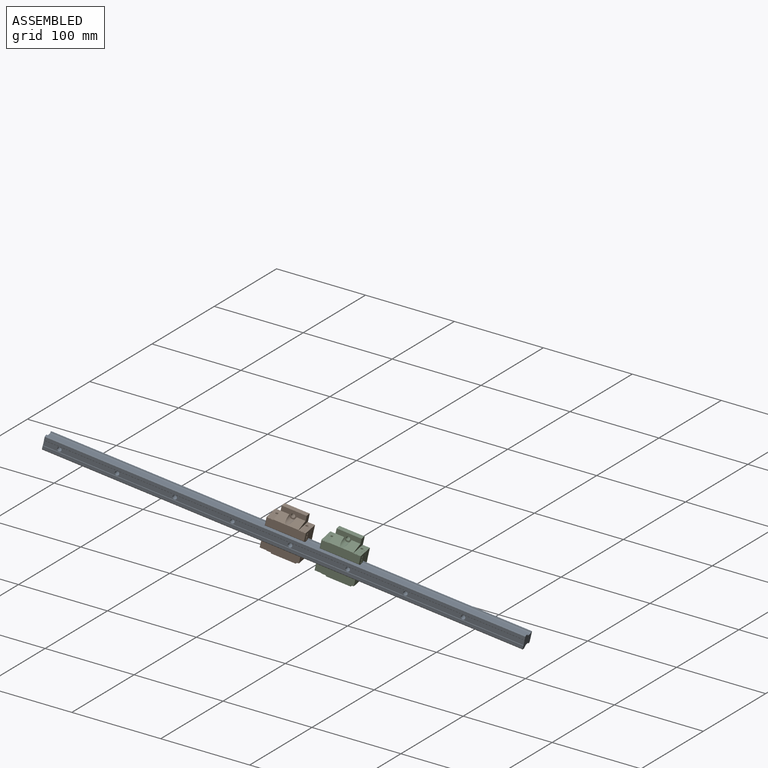
[diagram: assembled view]
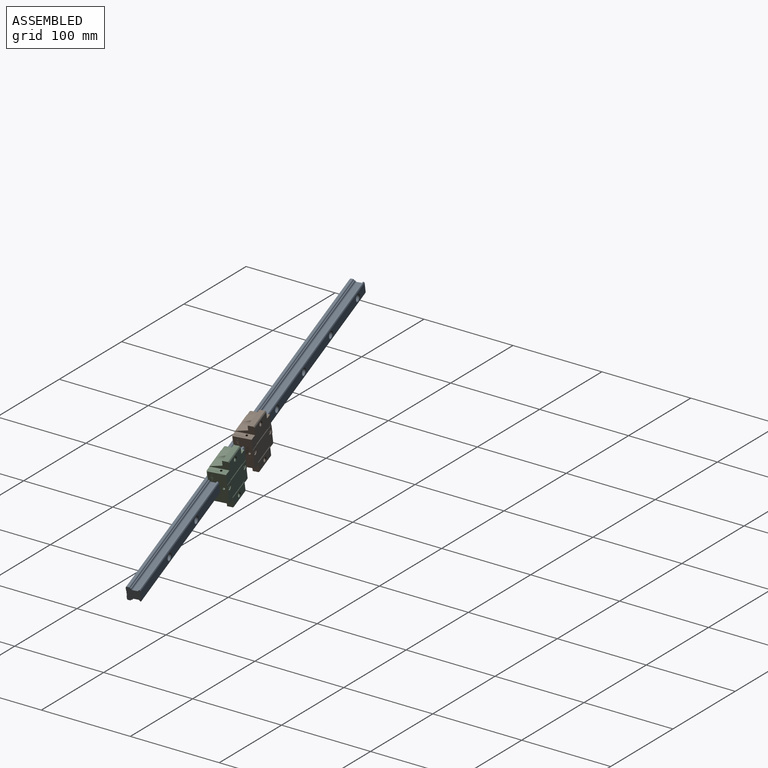
[diagram: assembled view, second angle]
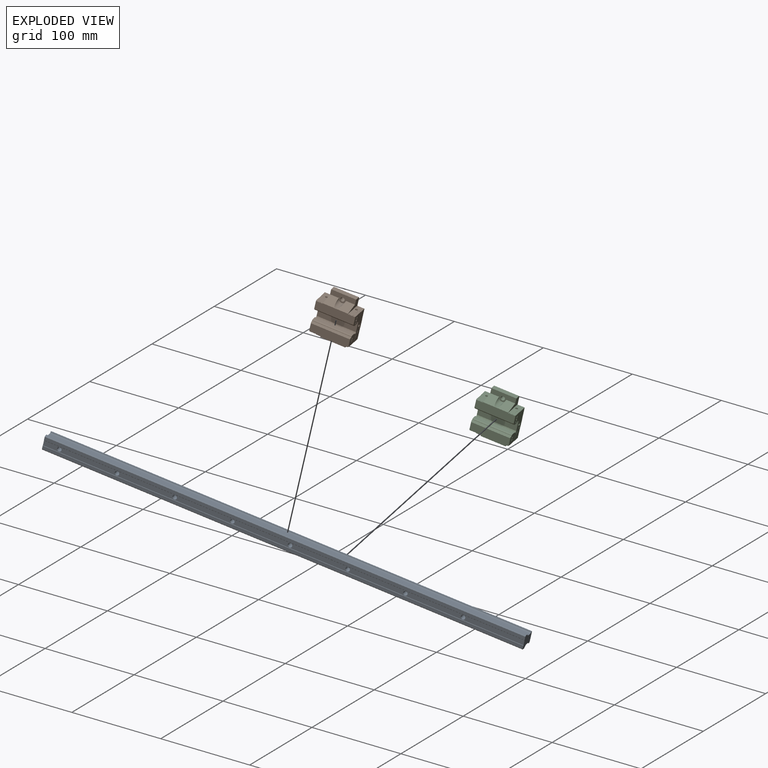
[diagram: exploded view]
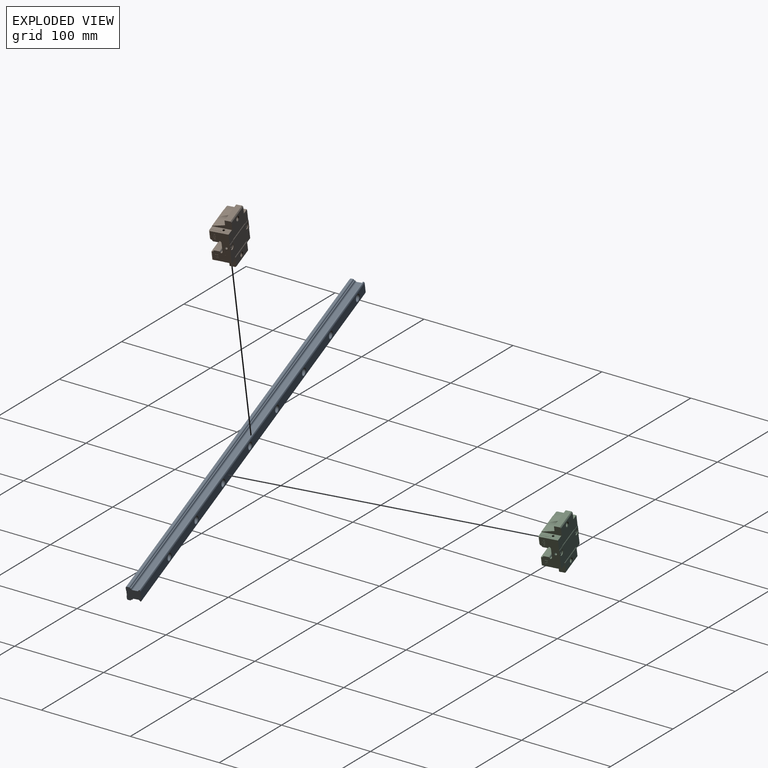
[diagram: exploded view, second angle]
ASSEMBLY  parts=3 mates=4
PART A: 68 faces, bbox 15x15x500 mm
  f0: cylinder r=0.5mm len=500mm, axis (0,0,-1), area 261.8mm2, adj f34,f35,f58,f67
  f1: cylinder r=0.3mm len=500mm, axis (0,0,-1), area 209mm2, adj f35,f36,f58,f67
  f2: cylinder r=0.3mm len=500mm, axis (0,0,-1), area 209mm2, adj f38,f39,f58,f67
  f3: cylinder r=0.3mm len=500mm, axis (0,0,-1), area 130.9mm2, adj f41,f42,f58,f67
  f4: cylinder r=0.3mm len=500mm, axis (0,0,-1), area 130.9mm2, adj f50,f51,f58,f67
  f5: cylinder r=0.3mm len=500mm, axis (0,0,-1), area 209mm2, adj f33,f53,f58,f67
  f6: cylinder r=0.3mm len=500mm, axis (0,0,-1), area 209mm2, adj f32,f55,f58,f67
  f7: cylinder r=0.5mm len=500mm, axis (0,0,-1), area 261.8mm2, adj f55,f56,f58,f67
  f8: cylinder r=3.75mm len=7.5mm, axis (0,1,0), area 119mm2, adj f9,f66
  f9: cone r=4mm half-angle=45deg, axis (0,1,0), area 8.6mm2, adj f8,f57
  f10: cylinder r=2.25mm len=9.4mm, axis (0,1,0), area 132.9mm2, adj f46,f66
  f11: cylinder r=3.75mm len=7.5mm, axis (0,1,0), area 119mm2, adj f12,f65
  f12: cone r=4mm half-angle=45deg, axis (0,1,0), area 8.6mm2, adj f11,f57
  f13: cylinder r=2.25mm len=9.4mm, axis (0,1,0), area 132.9mm2, adj f46,f65
  f14: cylinder r=3.75mm len=7.5mm, axis (0,1,0), area 119mm2, adj f15,f64
  f15: cone r=4mm half-angle=45deg, axis (0,1,0), area 8.6mm2, adj f14,f57
  f16: cylinder r=2.25mm len=9.4mm, axis (0,1,0), area 132.9mm2, adj f46,f64
  f17: cylinder r=3.75mm len=7.5mm, axis (0,1,0), area 119mm2, adj f18,f63
  f18: cone r=4mm half-angle=45deg, axis (0,1,0), area 8.6mm2, adj f17,f57
  f19: cylinder r=2.25mm len=9.4mm, axis (0,1,0), area 132.9mm2, adj f46,f63
  f20: cylinder r=3.75mm len=7.5mm, axis (0,1,0), area 119mm2, adj f21,f62
  f21: cone r=4mm half-angle=45deg, axis (0,1,0), area 8.6mm2, adj f20,f57
  f22: cylinder r=2.25mm len=9.4mm, axis (0,1,0), area 132.9mm2, adj f46,f62
  f23: cylinder r=3.75mm len=7.5mm, axis (0,1,0), area 119mm2, adj f24,f61
  f24: cone r=4mm half-angle=45deg, axis (0,1,0), area 8.6mm2, adj f23,f57
  f25: cylinder r=2.25mm len=9.4mm, axis (0,1,0), area 132.9mm2, adj f46,f61
  f26: cylinder r=3.75mm len=7.5mm, axis (0,1,0), area 119mm2, adj f27,f60
  f27: cone r=4mm half-angle=45deg, axis (0,1,0), area 8.6mm2, adj f26,f57
  f28: cylinder r=2.25mm len=9.4mm, axis (0,1,0), area 132.9mm2, adj f46,f60
  f29: cylinder r=3.75mm len=7.5mm, axis (0,1,0), area 119mm2, adj f30,f59
  f30: cone r=4mm half-angle=45deg, axis (0,1,0), area 8.6mm2, adj f29,f57
  f31: cylinder r=2.25mm len=9.4mm, axis (0,1,0), area 132.9mm2, adj f46,f59
  f32: cylinder r=1.65mm len=500mm, axis (0,0,-1), area 1221mm2, adj f6,f54,f58,f67
  f33: cylinder r=1.65mm len=500mm, axis (0,0,-1), area 1221mm2, adj f5,f54,f58,f67
  f34: plane 500x0.95mm, normal (-0.5,0.87,0), area 548.5mm2, adj f0,f57,f58,f67
  f35: plane 500x0.54mm, normal (-1,0,0), area 271.6mm2, adj f0,f1,f58,f67
  f36: cylinder r=1.65mm len=500mm, axis (0,0,-1), area 1221mm2, adj f1,f37,f58,f67
  f37: plane 500x4.13mm, normal (-1,0,0), area 2063.3mm2, adj f36,f38,f58,f67
  f38: cylinder r=1.65mm len=500mm, axis (0,0,-1), area 1221mm2, adj f2,f37,f58,f67
  f39: plane 500x0.58mm, normal (-1,0,0), area 292.4mm2, adj f2,f40,f58,f67
  f40: cylinder r=0.3mm len=500mm, axis (0,0,-1), area 130.9mm2, adj f39,f41,f58,f67
  f41: plane 500x0.79mm, normal (-0.64,0.77,0), area 512.8mm2, adj f3,f40,f58,f67
  f42: plane 500x2.72mm, normal (-1,0,0), area 1360.5mm2, adj f3,f43,f58,f67
  f43: plane 500x0.8mm, normal (-0.71,-0.71,0), area 565.7mm2, adj f42,f44,f58,f67
  f44: plane 500x3.7mm, normal (0,-1,0), area 1850mm2, adj f43,f45,f58,f67
  f45: plane 500x0.3mm, normal (0.71,-0.71,0), area 212.1mm2, adj f44,f46,f58,f67
  f46: plane 500x5.4mm, normal (0,-1,0), area 2572.8mm2, adj f10,f13,f16,f19,f22,f25,f28,f31
  f47: plane 500x0.3mm, normal (-0.71,-0.71,0), area 212.1mm2, adj f46,f48,f58,f67
  f48: plane 500x3.7mm, normal (0,-1,0), area 1850mm2, adj f47,f49,f58,f67
  f49: plane 500x0.8mm, normal (0.71,-0.71,0), area 565.7mm2, adj f48,f50,f58,f67
  f50: plane 500x2.72mm, normal (1,0,0), area 1360.5mm2, adj f4,f49,f58,f67
  f51: plane 500x0.79mm, normal (0.64,0.77,0), area 512.8mm2, adj f4,f52,f58,f67
  f52: cylinder r=0.3mm len=500mm, axis (0,0,-1), area 130.9mm2, adj f51,f53,f58,f67
  f53: plane 500x0.58mm, normal (1,0,0), area 292.4mm2, adj f5,f52,f58,f67
  f54: plane 500x4.13mm, normal (1,0,0), area 2063.3mm2, adj f32,f33,f58,f67
  f55: plane 500x0.54mm, normal (1,0,0), area 271.6mm2, adj f6,f7,f58,f67
  f56: plane 500x0.95mm, normal (0.5,0.87,0), area 548.5mm2, adj f7,f57,f58,f67
  f57: plane 500x10.6mm, normal (0,1,0), area 4897.9mm2, adj f9,f12,f15,f18,f21,f24,f27,f30
  f58: plane 15x15mm, normal (0,0,1), area 177.5mm2, adj f0,f1,f2,f3,f4,f5,f6,f7
  f59: plane 7.5x7.5mm, normal (0,1,0), area 28.3mm2, adj f29,f31
  f60: plane 7.5x7.5mm, normal (0,1,0), area 28.3mm2, adj f26,f28
  f61: plane 7.5x7.5mm, normal (0,1,0), area 28.3mm2, adj f23,f25
  f62: plane 7.5x7.5mm, normal (0,1,0), area 28.3mm2, adj f20,f22
  f63: plane 7.5x7.5mm, normal (0,1,0), area 28.3mm2, adj f17,f19
  f64: plane 7.5x7.5mm, normal (0,1,0), area 28.3mm2, adj f14,f16
  f65: plane 7.5x7.5mm, normal (0,1,0), area 28.3mm2, adj f11,f13
  f66: plane 7.5x7.5mm, normal (0,1,0), area 28.3mm2, adj f8,f10
  f67: plane 15x15mm, normal (0,0,-1), area 177.5mm2, adj f0,f1,f2,f3,f4,f5,f6,f7
PART B: 258 faces, bbox 52x20.7x41.2 mm
  f0: cylinder r=0.4mm len=26mm, axis (0,0,-1), area 21.8mm2, adj f24,f43,f44,f49
  f1: cylinder r=1.25mm len=2.5mm, axis (0,1,0), area 2.4mm2, adj f252,f255
  f2: cylinder r=1.25mm len=2.5mm, axis (0,1,0), area 2.4mm2, adj f253,f254
  f3: cylinder r=3mm len=6mm, axis (0,1,0), area 18.8mm2, adj f60,f253
  f4: cylinder r=3mm len=6mm, axis (0,1,0), area 18.8mm2, adj f53,f252
  f5: cylinder r=1.35mm len=5.5mm, axis (1,0,0), area 46.7mm2, adj f6,f41
  f6: cone r=1.35mm half-angle=59deg, axis (1,0,0), area 6.7mm2, adj f5
  f7: cylinder r=1.35mm len=5.5mm, axis (1,0,0), area 46.7mm2, adj f8,f57
  f8: cone r=1.35mm half-angle=59deg, axis (1,0,0), area 6.7mm2, adj f7
  f9: cylinder r=3.75mm len=13.7mm, axis (0,-1,0), area 105.5mm2, adj f34,f35,f46,f47
  f10: cylinder r=1.35mm len=5.5mm, axis (-1,0,0), area 46.7mm2, adj f11,f40
  f11: cone r=1.35mm half-angle=59deg, axis (-1,0,0), area 6.7mm2, adj f10
  f12: cylinder r=1.35mm len=5.5mm, axis (-1,0,0), area 46.7mm2, adj f13,f56
  f13: cone r=1.35mm half-angle=59deg, axis (-1,0,0), area 6.7mm2, adj f12
  f14: cylinder r=1.35mm len=41mm, axis (0,0,1), area 82.4mm2, adj f38,f39,f238,f239
  f15: cylinder r=1.35mm len=41mm, axis (0,0,1), area 82.4mm2, adj f38,f39,f237,f238
  f16: cylinder r=2.15mm len=6.4mm, axis (0,-1,0), area 86.5mm2, adj f17,f46
  f17: cone r=2.15mm half-angle=45deg, axis (0,1,0), area 13.1mm2, adj f16,f33
  f18: cylinder r=2.15mm len=6.4mm, axis (0,-1,0), area 86.5mm2, adj f19,f37
  f19: cone r=2.15mm half-angle=45deg, axis (0,1,0), area 13.1mm2, adj f18,f50
  f20: cone r=1.35mm half-angle=59deg, axis (0,0,-1), area 6.7mm2, adj f21
  f21: cylinder r=1.35mm len=5.4mm, axis (0,0,-1), area 45.8mm2, adj f20,f38
  f22: cone r=1.35mm half-angle=59deg, axis (0,0,1), area 6.7mm2, adj f23
  f23: cylinder r=1.35mm len=5.4mm, axis (0,0,1), area 45.8mm2, adj f22,f39
  f24: plane 26x2.65mm, normal (1,0,0), area 69mm2, adj f0,f43,f44,f257
  f25: plane 38.4x9.05mm, normal (0,-1,0), area 342.4mm2, adj f26,f27,f36,f43,f44,f48,f69,f80
  f26: cylinder r=1.3mm len=9.6mm, axis (1,0,0), area 18.1mm2, adj f25,f39,f69,f245,f247,f248
  f27: cylinder r=1.3mm len=9.6mm, axis (1,0,0), area 18.1mm2, adj f25,f38,f80,f245,f247,f248
  f28: plane 10.9x0.45mm, normal (0,0,1), area 1.9mm2, adj f30,f58,f59,f60,f61,f62,f219,f224
  f29: plane 10.9x0.45mm, normal (0,0,-1), area 1.9mm2, adj f30,f51,f52,f53,f54,f55,f219,f224
  f30: plane 26x10mm, normal (0,1,0), area 260mm2, adj f28,f29,f219,f224
  f31: plane 20.7x11.45mm, normal (0,0,1), area 96.8mm2, adj f33,f35,f45,f46,f47,f56,f62,f72
  f32: plane 20.7x11.45mm, normal (0,0,-1), area 96.8mm2, adj f33,f34,f35,f40,f45,f46,f51,f84
  f33: plane 26x10mm, normal (0,1,0), area 236.2mm2, adj f17,f31,f32,f218,f256
  f34: plane 13.7x12.14mm, normal (-0.97,-0.26,0), area 141.6mm2, adj f9,f32,f35,f46
  f35: plane 38.4x9.05mm, normal (0,-1,0), area 341.8mm2, adj f9,f31,f32,f34,f47,f74,f85,f226
  f36: plane 13.7x12.14mm, normal (0.97,-0.26,0), area 141.6mm2, adj f25,f37,f43,f251
  f37: plane 26x9.25mm, normal (0,-1,0), area 150.2mm2, adj f18,f36,f43,f44,f48,f49,f251
  f38: plane 32.85x18.2mm, normal (0,0,-1), area 302mm2, adj f14,f15,f21,f27,f75,f76,f77,f78
  f39: plane 32.85x18.2mm, normal (0,0,1), area 302mm2, adj f14,f15,f23,f26,f64,f65,f66,f67
  f40: plane 19.55x7.6mm, normal (-1,0,0), area 113.5mm2, adj f10,f32,f42,f51,f79,f83,f84
  f41: plane 19.45x7.6mm, normal (1,0,0), area 113mm2, adj f5,f42,f44,f55,f75,f81,f82
  f42: plane 33x8.55mm, normal (0,0,-1), area 177.5mm2, adj f40,f41,f51,f52,f53,f54,f55,f75
  f43: plane 20.7x11.45mm, normal (0,0,1), area 96.7mm2, adj f0,f24,f25,f36,f37,f49,f50,f57
  f44: plane 20.7x11.45mm, normal (0,0,-1), area 96.7mm2, adj f0,f24,f25,f37,f41,f48,f49,f50
  f45: plane 26x6mm, normal (-1,0,0), area 156mm2, adj f31,f32,f46,f256
  f46: plane 26x9.25mm, normal (0,-1,0), area 150.2mm2, adj f9,f16,f31,f32,f34,f45,f47
  f47: plane 13.7x12.14mm, normal (-0.97,-0.26,0), area 141.6mm2, adj f9,f31,f35,f46
  f48: plane 13.7x12.14mm, normal (0.97,-0.26,0), area 141.6mm2, adj f25,f37,f44,f251
  f49: plane 26x2.65mm, normal (1,0,0), area 69mm2, adj f0,f37,f43,f44
  f50: plane 26x10mm, normal (0,1,0), area 236.2mm2, adj f19,f43,f44,f225,f257
  f51: plane 11.7x7.6mm, normal (0,1,0), area 88.9mm2, adj f29,f32,f40,f42,f52,f216
  f52: plane 7.6x0.3mm, normal (-0.71,0.71,0), area 3.2mm2, adj f29,f42,f51,f53
  f53: plane 9x7.6mm, normal (0,1,0), area 40.1mm2, adj f4,f29,f42,f52,f54
  f54: plane 7.6x0.3mm, normal (0.71,0.71,0), area 3.2mm2, adj f29,f42,f53,f55
  f55: plane 11.7x7.6mm, normal (0,1,0), area 88.9mm2, adj f29,f41,f42,f44,f54,f221
  f56: plane 19.55x7.6mm, normal (-1,0,0), area 113.5mm2, adj f12,f31,f62,f63,f64,f72,f73
  f57: plane 19.45x7.6mm, normal (1,0,0), area 113mm2, adj f7,f43,f58,f63,f68,f70,f71
  f58: plane 11.7x7.6mm, normal (0,1,0), area 88.9mm2, adj f28,f43,f57,f59,f63,f222
  f59: plane 7.6x0.3mm, normal (0.71,0.71,0), area 3.2mm2, adj f28,f58,f60,f63
  f60: plane 9x7.6mm, normal (0,1,0), area 40.1mm2, adj f3,f28,f59,f61,f63
  f61: plane 7.6x0.3mm, normal (-0.71,0.71,0), area 3.2mm2, adj f28,f60,f62,f63
  f62: plane 11.7x7.6mm, normal (0,1,0), area 88.9mm2, adj f28,f31,f56,f61,f63,f217
  f63: plane 33x8.55mm, normal (0,0,1), area 177.5mm2, adj f56,f57,f58,f59,f60,f61,f62,f64
  f64: plane 5x2.6mm, normal (0,-1,0), area 0.7mm2, adj f39,f56,f63,f65,f73,f74
  f65: plane 10x7.5mm, normal (0.6,-0.8,0), area 1.2mm2, adj f39,f63,f64,f66
  f66: plane 3x0.1mm, normal (0,-1,0), area 0.3mm2, adj f39,f63,f65,f67
  f67: plane 10x7.5mm, normal (-0.6,-0.8,0), area 1.2mm2, adj f39,f63,f66,f68
  f68: plane 5x2.6mm, normal (0,-1,0), area 0.6mm2, adj f39,f57,f63,f67,f69,f70
  f69: plane 12x7.5mm, normal (1,0,0), area 33.6mm2, adj f25,f26,f39,f43,f68,f70,f71
  f70: plane 11.2x0.05mm, normal (0,0,1), area 0.6mm2, adj f57,f68,f69,f71
  f71: plane 5x0.05mm, normal (0,-1,0), area 0.3mm2, adj f43,f57,f69,f70
  f72: plane 5x0.1mm, normal (0,-1,0), area 0.5mm2, adj f31,f56,f73,f74
  f73: plane 11.3x0.1mm, normal (0,0,1), area 1.1mm2, adj f56,f64,f72,f74
  f74: plane 12x7.5mm, normal (-1,0,0), area 33.1mm2, adj f31,f35,f39,f64,f72,f73,f226
  f75: plane 5x2.6mm, normal (0,-1,0), area 0.6mm2, adj f38,f41,f42,f76,f80,f82
  f76: plane 10x7.5mm, normal (-0.6,-0.8,0), area 1.2mm2, adj f38,f42,f75,f77
  f77: plane 3x0.1mm, normal (0,-1,0), area 0.3mm2, adj f38,f42,f76,f78
  f78: plane 10x7.5mm, normal (0.6,-0.8,0), area 1.2mm2, adj f38,f42,f77,f79
  f79: plane 5x2.6mm, normal (0,-1,0), area 0.7mm2, adj f38,f40,f42,f78,f83,f85
  f80: plane 12x7.5mm, normal (1,0,0), area 33.6mm2, adj f25,f27,f38,f44,f75,f81,f82
  f81: plane 5x0.05mm, normal (0,-1,0), area 0.3mm2, adj f41,f44,f80,f82
  f82: plane 11.2x0.05mm, normal (0,0,-1), area 0.6mm2, adj f41,f75,f80,f81
  f83: plane 11.3x0.1mm, normal (0,0,-1), area 1.1mm2, adj f40,f79,f84,f85
  f84: plane 5x0.1mm, normal (0,-1,0), area 0.5mm2, adj f32,f40,f83,f85
  f85: plane 12x7.5mm, normal (-1,0,0), area 33.1mm2, adj f32,f35,f38,f79,f83,f84,f227
  f86: bspline ~0.41x0.32mm, area 0.2mm2, adj f39,f87,f97,f98
  f87: plane 0.87x0.3mm, normal (-0.09,-1,0), area 0.3mm2, adj f39,f86,f88,f98
  f88: bspline ~1.21x0.83mm, area 0.5mm2, adj f39,f87,f89,f98
  f89: bspline ~1.35x1.13mm, area 0.6mm2, adj f39,f88,f90,f98
  f90: bspline ~0.56x0.3mm, area 0.2mm2, adj f39,f89,f91,f98
  f91: bspline ~0.54x0.49mm, area 0.2mm2, adj f39,f90,f92,f98
  f92: bspline ~0.64x0.3mm, area 0.2mm2, adj f39,f91,f93,f98
  f93: bspline ~1.23x0.75mm, area 0.5mm2, adj f39,f92,f94,f98
  f94: plane 0.87x0.3mm, normal (-0.14,0.99,0), area 0.3mm2, adj f39,f93,f95,f98
  f95: bspline ~0.36x0.3mm, area 0.1mm2, adj f39,f94,f96,f98
  f96: bspline ~0.58x0.42mm, area 0.2mm2, adj f39,f95,f97,f98
  f97: bspline ~0.53x0.42mm, area 0.2mm2, adj f39,f86,f96,f98
  f98: plane 2.56x2.28mm, normal (0,0,1), area 3.6mm2, adj f86,f87,f88,f89,f90,f91,f92,f93
  f99: plane 0.83x0.3mm, normal (0,1,0), area 0.2mm2, adj f39,f100,f108,f109
  f100: plane 3.03x0.3mm, normal (1,0,0), area 0.9mm2, adj f39,f99,f101,f109
  f101: plane 0.77x0.3mm, normal (0,-1,0), area 0.2mm2, adj f39,f100,f102,f109
  f102: plane 0.32x0.3mm, normal (-1,0,0), area 0.1mm2, adj f39,f101,f103,f109
  f103: bspline ~0.3x0.3mm, area 0.1mm2, adj f39,f102,f104,f109
  f104: bspline ~0.41x0.3mm, area 0.1mm2, adj f39,f103,f105,f109
  f105: bspline ~1.16x0.93mm, area 0.5mm2, adj f39,f104,f106,f109
  f106: bspline ~1.12x0.93mm, area 0.5mm2, adj f39,f105,f107,f109
  f107: bspline ~0.64x0.3mm, area 0.2mm2, adj f39,f106,f108,f109
  f108: plane 1.03x0.3mm, normal (-1,0,0), area 0.3mm2, adj f39,f99,f107,f109
  f109: plane 3.07x2.4mm, normal (0,0,1), area 4.9mm2, adj f99,f100,f101,f102,f103,f104,f105,f106
  f110: bspline ~0.56x0.37mm, area 0.2mm2, adj f109,f111,f113,f114
  f111: bspline ~0.54x0.35mm, area 0.2mm2, adj f109,f110,f112,f114
  f112: bspline ~0.56x0.34mm, area 0.2mm2, adj f109,f111,f113,f114
  f113: bspline ~0.54x0.38mm, area 0.2mm2, adj f109,f110,f112,f114
  f114: plane 1.1x0.71mm, normal (0,0,1), area 0.6mm2, adj f110,f111,f112,f113
  f115: bspline ~0.41x0.32mm, area 0.2mm2, adj f39,f116,f126,f127
  f116: plane 0.87x0.3mm, normal (-0.09,-1,0), area 0.3mm2, adj f39,f115,f117,f127
  f117: bspline ~1.21x0.83mm, area 0.5mm2, adj f39,f116,f118,f127
  f118: bspline ~1.35x1.13mm, area 0.6mm2, adj f39,f117,f119,f127
  f119: bspline ~0.56x0.3mm, area 0.2mm2, adj f39,f118,f120,f127
  f120: bspline ~0.54x0.49mm, area 0.2mm2, adj f39,f119,f121,f127
  f121: bspline ~0.64x0.3mm, area 0.2mm2, adj f39,f120,f122,f127
  f122: bspline ~1.23x0.75mm, area 0.5mm2, adj f39,f121,f123,f127
  f123: plane 0.87x0.3mm, normal (-0.14,0.99,0), area 0.3mm2, adj f39,f122,f124,f127
  f124: bspline ~0.36x0.3mm, area 0.1mm2, adj f39,f123,f125,f127
  f125: bspline ~0.58x0.42mm, area 0.2mm2, adj f39,f124,f126,f127
  f126: bspline ~0.53x0.42mm, area 0.2mm2, adj f39,f115,f125,f127
  f127: plane 2.56x2.28mm, normal (0,0,1), area 3.6mm2, adj f115,f116,f117,f118,f119,f120,f121,f122
  f128: plane 0.53x0.34mm, normal (0.84,-0.54,0), area 0.2mm2, adj f39,f129,f133,f134
  f129: plane 0.88x0.3mm, normal (0,-1,0), area 0.3mm2, adj f39,f128,f130,f134
  f130: plane 3.18x0.3mm, normal (-1,0,0), area 1mm2, adj f39,f129,f131,f134
  f131: plane 0.57x0.3mm, normal (0,1,0), area 0.2mm2, adj f39,f130,f132,f134
  f132: plane 2.65x0.3mm, normal (1,0,0), area 0.8mm2, adj f39,f131,f133,f134
  f133: plane 0.65x0.3mm, normal (0,1,0), area 0.2mm2, adj f39,f128,f132,f134
  f134: plane 3.18x1.22mm, normal (0,0,1), area 2.1mm2, adj f128,f129,f130,f131,f132,f133
  f135: plane 1.76x0.37mm, normal (0.98,-0.21,0), area 0.5mm2, adj f39,f136,f149,f150
  f136: plane 1.45x0.3mm, normal (0,-1,0), area 0.4mm2, adj f39,f135,f137,f150
  f137: plane 0.53x0.3mm, normal (-1,0,0), area 0.2mm2, adj f39,f136,f138,f150
  f138: plane 0.99x0.3mm, normal (0,1,0), area 0.3mm2, adj f39,f137,f139,f150
  f139: plane 0.6x0.3mm, normal (-0.98,0.2,0), area 0.2mm2, adj f39,f138,f140,f150
  f140: bspline ~0.3x0.2mm, area 0.1mm2, adj f39,f139,f141,f150
  f141: bspline ~1.05x0.96mm, area 0.5mm2, adj f39,f140,f142,f150
  f142: bspline ~1.1x1.06mm, area 0.5mm2, adj f39,f141,f143,f150
  f143: bspline ~1.06x0.86mm, area 0.4mm2, adj f39,f142,f144,f150
  f144: plane 0.65x0.3mm, normal (0,-1,0), area 0.2mm2, adj f39,f143,f145,f150
  f145: bspline ~0.44x0.3mm, area 0.2mm2, adj f39,f144,f146,f150
  f146: bspline ~0.52x0.46mm, area 0.2mm2, adj f39,f145,f147,f150
  f147: bspline ~0.5x0.44mm, area 0.2mm2, adj f39,f146,f148,f150
  f148: bspline ~0.37x0.3mm, area 0.1mm2, adj f39,f147,f149,f150
  f149: plane 0.48x0.3mm, normal (0.22,0.97,0), area 0.1mm2, adj f39,f135,f148,f150
  f150: plane 3.26x2.12mm, normal (0,0,1), area 3.7mm2, adj f135,f136,f137,f138,f139,f140,f141,f142
  f151: bspline ~0.41x0.32mm, area 0.2mm2, adj f38,f152,f162,f163
  f152: plane 0.87x0.3mm, normal (0.09,-1,0), area 0.3mm2, adj f38,f151,f153,f163
  f153: bspline ~1.21x0.83mm, area 0.5mm2, adj f38,f152,f154,f163
  f154: bspline ~1.35x1.13mm, area 0.6mm2, adj f38,f153,f155,f163
  f155: bspline ~0.56x0.3mm, area 0.2mm2, adj f38,f154,f156,f163
  f156: bspline ~0.54x0.49mm, area 0.2mm2, adj f38,f155,f157,f163
  f157: bspline ~0.64x0.3mm, area 0.2mm2, adj f38,f156,f158,f163
  f158: bspline ~1.23x0.75mm, area 0.5mm2, adj f38,f157,f159,f163
  f159: plane 0.87x0.3mm, normal (0.14,0.99,0), area 0.3mm2, adj f38,f158,f160,f163
  f160: bspline ~0.36x0.3mm, area 0.1mm2, adj f38,f159,f161,f163
  f161: bspline ~0.58x0.42mm, area 0.2mm2, adj f38,f160,f162,f163
  f162: bspline ~0.53x0.42mm, area 0.2mm2, adj f38,f151,f161,f163
  f163: plane 2.56x2.28mm, normal (0,0,-1), area 3.6mm2, adj f151,f152,f153,f154,f155,f156,f157,f158
  f164: plane 0.83x0.3mm, normal (0,1,0), area 0.2mm2, adj f38,f165,f173,f174
  f165: plane 3.03x0.3mm, normal (-1,0,0), area 0.9mm2, adj f38,f164,f166,f174
  f166: plane 0.77x0.3mm, normal (0,-1,0), area 0.2mm2, adj f38,f165,f167,f174
  f167: plane 0.32x0.3mm, normal (1,0,0), area 0.1mm2, adj f38,f166,f168,f174
  f168: bspline ~0.3x0.3mm, area 0.1mm2, adj f38,f167,f169,f174
  f169: bspline ~0.41x0.3mm, area 0.1mm2, adj f38,f168,f170,f174
  f170: bspline ~1.16x0.93mm, area 0.5mm2, adj f38,f169,f171,f174
  f171: bspline ~1.12x0.93mm, area 0.5mm2, adj f38,f170,f172,f174
  f172: bspline ~0.64x0.3mm, area 0.2mm2, adj f38,f171,f173,f174
  f173: plane 1.03x0.3mm, normal (1,0,0), area 0.3mm2, adj f38,f164,f172,f174
  f174: plane 3.07x2.4mm, normal (0,0,-1), area 4.9mm2, adj f164,f165,f166,f167,f168,f169,f170,f171
  f175: bspline ~0.56x0.37mm, area 0.2mm2, adj f174,f176,f178,f179
  f176: bspline ~0.54x0.35mm, area 0.2mm2, adj f174,f175,f177,f179
  f177: bspline ~0.56x0.34mm, area 0.2mm2, adj f174,f176,f178,f179
  f178: bspline ~0.54x0.38mm, area 0.2mm2, adj f174,f175,f177,f179
  f179: plane 1.1x0.71mm, normal (0,0,-1), area 0.6mm2, adj f175,f176,f177,f178
  f180: bspline ~0.41x0.32mm, area 0.2mm2, adj f38,f181,f191,f192
  f181: plane 0.87x0.3mm, normal (0.09,-1,0), area 0.3mm2, adj f38,f180,f182,f192
  f182: bspline ~1.21x0.83mm, area 0.5mm2, adj f38,f181,f183,f192
  f183: bspline ~1.35x1.13mm, area 0.6mm2, adj f38,f182,f184,f192
  f184: bspline ~0.56x0.3mm, area 0.2mm2, adj f38,f183,f185,f192
  f185: bspline ~0.54x0.49mm, area 0.2mm2, adj f38,f184,f186,f192
  f186: bspline ~0.64x0.3mm, area 0.2mm2, adj f38,f185,f187,f192
  f187: bspline ~1.23x0.75mm, area 0.5mm2, adj f38,f186,f188,f192
  f188: plane 0.87x0.3mm, normal (0.14,0.99,0), area 0.3mm2, adj f38,f187,f189,f192
  f189: bspline ~0.36x0.3mm, area 0.1mm2, adj f38,f188,f190,f192
  f190: bspline ~0.58x0.42mm, area 0.2mm2, adj f38,f189,f191,f192
  f191: bspline ~0.53x0.42mm, area 0.2mm2, adj f38,f180,f190,f192
  f192: plane 2.56x2.28mm, normal (0,0,-1), area 3.6mm2, adj f180,f181,f182,f183,f184,f185,f186,f187
  f193: plane 0.53x0.34mm, normal (-0.84,-0.54,0), area 0.2mm2, adj f38,f194,f198,f199
  f194: plane 0.88x0.3mm, normal (0,-1,0), area 0.3mm2, adj f38,f193,f195,f199
  f195: plane 3.18x0.3mm, normal (1,0,0), area 1mm2, adj f38,f194,f196,f199
  f196: plane 0.57x0.3mm, normal (0,1,0), area 0.2mm2, adj f38,f195,f197,f199
  f197: plane 2.65x0.3mm, normal (-1,0,0), area 0.8mm2, adj f38,f196,f198,f199
  f198: plane 0.65x0.3mm, normal (0,1,0), area 0.2mm2, adj f38,f193,f197,f199
  f199: plane 3.18x1.22mm, normal (0,0,-1), area 2.1mm2, adj f193,f194,f195,f196,f197,f198
  f200: plane 1.76x0.37mm, normal (-0.98,-0.21,0), area 0.5mm2, adj f38,f201,f214,f215
  f201: plane 1.45x0.3mm, normal (0,-1,0), area 0.4mm2, adj f38,f200,f202,f215
  f202: plane 0.53x0.3mm, normal (1,0,0), area 0.2mm2, adj f38,f201,f203,f215
  f203: plane 0.99x0.3mm, normal (0,1,0), area 0.3mm2, adj f38,f202,f204,f215
  f204: plane 0.6x0.3mm, normal (0.98,0.2,0), area 0.2mm2, adj f38,f203,f205,f215
  f205: bspline ~0.3x0.2mm, area 0.1mm2, adj f38,f204,f206,f215
  f206: bspline ~1.05x0.96mm, area 0.5mm2, adj f38,f205,f207,f215
  f207: bspline ~1.1x1.06mm, area 0.5mm2, adj f38,f206,f208,f215
  f208: bspline ~1.06x0.86mm, area 0.4mm2, adj f38,f207,f209,f215
  f209: plane 0.65x0.3mm, normal (0,-1,0), area 0.2mm2, adj f38,f208,f210,f215
  f210: bspline ~0.44x0.3mm, area 0.2mm2, adj f38,f209,f211,f215
  f211: bspline ~0.52x0.46mm, area 0.2mm2, adj f38,f210,f212,f215
  f212: bspline ~0.5x0.44mm, area 0.2mm2, adj f38,f211,f213,f215
  f213: bspline ~0.37x0.3mm, area 0.1mm2, adj f38,f212,f214,f215
  f214: plane 0.48x0.3mm, normal (-0.22,0.97,0), area 0.1mm2, adj f38,f200,f213,f215
  f215: plane 3.26x2.12mm, normal (0,0,-1), area 3.7mm2, adj f200,f201,f202,f203,f204,f205,f206,f207
  f216: plane 9.1x0.05mm, normal (0,0,1), area 0.5mm2, adj f51,f218,f219,f220
  f217: plane 9.1x0.05mm, normal (0,0,-1), area 0.5mm2, adj f62,f218,f219,f220
  f218: plane 26x0.5mm, normal (0.71,0.71,0), area 18.4mm2, adj f31,f32,f33,f216,f217,f220
  f219: plane 26x0.5mm, normal (-0.71,0.71,0), area 18.4mm2, adj f28,f29,f30,f216,f217,f220
  f220: plane 26x9mm, normal (0,1,0), area 234mm2, adj f216,f217,f218,f219
  f221: plane 9.1x0.05mm, normal (0,0,1), area 0.5mm2, adj f55,f223,f224,f225
  f222: plane 9.1x0.05mm, normal (0,0,-1), area 0.5mm2, adj f58,f223,f224,f225
  f223: plane 26x9mm, normal (0,1,0), area 234mm2, adj f221,f222,f224,f225
  f224: plane 26x0.5mm, normal (0.71,0.71,0), area 18.4mm2, adj f28,f29,f30,f221,f222,f223
  f225: plane 26x0.5mm, normal (-0.71,0.71,0), area 18.4mm2, adj f43,f44,f50,f221,f222,f223
  f226: cylinder r=1.3mm len=9.55mm, axis (1,0,0), area 18mm2, adj f35,f39,f74,f246,f249,f250
  f227: cylinder r=1.3mm len=9.55mm, axis (1,0,0), area 18mm2, adj f35,f38,f85,f246,f249,f250
  f228: cylinder r=0.8mm len=41mm, axis (0,0,1), area 34.3mm2, adj f38,f39,f229,f244
  f229: plane 41x0.54mm, normal (-1,0,0), area 22.3mm2, adj f38,f39,f228,f230
  f230: cylinder r=0.6mm len=41mm, axis (0,0,1), area 34.3mm2, adj f38,f39,f229,f231
  f231: cylinder r=1.35mm len=41mm, axis (0,0,1), area 82.4mm2, adj f38,f39,f230,f232
  f232: plane 41x4.15mm, normal (-1,0,0), area 170.3mm2, adj f38,f39,f231,f233
  f233: cylinder r=1.35mm len=41mm, axis (0,0,1), area 82.4mm2, adj f38,f39,f232,f234
  f234: cylinder r=0.6mm len=41mm, axis (0,0,1), area 34.3mm2, adj f38,f39,f233,f235
  f235: plane 41x0.58mm, normal (-1,0,0), area 24mm2, adj f38,f39,f234,f245
  f236: plane 41x0.58mm, normal (1,0,0), area 24mm2, adj f38,f39,f237,f246
  f237: cylinder r=0.6mm len=41mm, axis (0,0,1), area 34.3mm2, adj f15,f38,f39,f236
  f238: plane 41x4.15mm, normal (1,0,0), area 170.3mm2, adj f14,f15,f38,f39
  f239: cylinder r=0.6mm len=41mm, axis (0,0,1), area 34.3mm2, adj f14,f38,f39,f240
  f240: plane 41x0.54mm, normal (1,0,0), area 22.3mm2, adj f38,f39,f239,f241
  f241: cylinder r=0.8mm len=41mm, axis (0,0,1), area 34.3mm2, adj f38,f39,f240,f242
  f242: plane 41x1.02mm, normal (0.5,-0.87,0), area 48.3mm2, adj f38,f39,f241,f243
  f243: plane 41x10.76mm, normal (0,-1,0), area 441.2mm2, adj f38,f39,f242,f244
  f244: plane 41x1.02mm, normal (-0.5,-0.87,0), area 48.3mm2, adj f38,f39,f228,f243
  f245: plane 41.02x0.81mm, normal (-0.64,-0.77,0), area 42mm2, adj f26,f27,f38,f39,f235,f247
  f246: plane 41.02x0.81mm, normal (0.64,-0.77,0), area 42mm2, adj f38,f39,f226,f227,f236,f250
  f247: cylinder r=0.6mm len=40.69mm, axis (0,0,1), area 21.1mm2, adj f26,f27,f245,f248
  f248: plane 39.85x0.22mm, normal (-1,0,0), area 8.7mm2, adj f25,f26,f27,f247
  f249: plane 39.85x0.22mm, normal (1,0,0), area 8.7mm2, adj f35,f226,f227,f250
  f250: cylinder r=0.6mm len=40.69mm, axis (0,0,1), area 21.1mm2, adj f226,f227,f246,f249
  f251: cylinder r=3.75mm len=13.7mm, axis (0,-1,0), area 105.5mm2, adj f25,f36,f37,f48
  f252: plane 6x6mm, normal (0,1,0), area 23.4mm2, adj f1,f4
  f253: plane 6x6mm, normal (0,1,0), area 23.4mm2, adj f2,f3
  f254: plane 2.5x2.5mm, normal (0,1,0), area 4.9mm2, adj f2
  f255: plane 2.5x2.5mm, normal (0,1,0), area 4.9mm2, adj f1
  f256: plane 26x1mm, normal (-0.71,0.71,0), area 36.8mm2, adj f31,f32,f33,f45
  f257: plane 26x1mm, normal (0.71,0.71,0), area 36.8mm2, adj f24,f43,f44,f50
PART C: same geometry as B
PLACE A rot(axis=(0.09,-0.99,0.11),78.2deg) t=(-114.69,-161.34,23.48)mm
PLACE B rot(axis=(-0.09,0.99,0.07),102.7deg) t=(-374.35,-183.06,80.61)mm
PLACE C rot(axis=(-0.09,0.99,0.07),102.7deg) t=(-319.39,-173.37,68.39)mm
MATE planar B.f232 <-> A.f37  axis (0.21,0.04,0.98) through (-372.9,-197.68,75.53)mm
MATE planar C.f243 <-> A.f57  axis (0.17,-0.98,0) through (-319.02,-182.14,63.13)mm
MATE planar B.f243 <-> A.f57  axis (0.17,-0.98,0) through (-372.84,-191.63,80.61)mm
MATE planar C.f232 <-> A.f37  axis (0.21,0.04,0.98) through (-317.95,-187.99,63.31)mm
